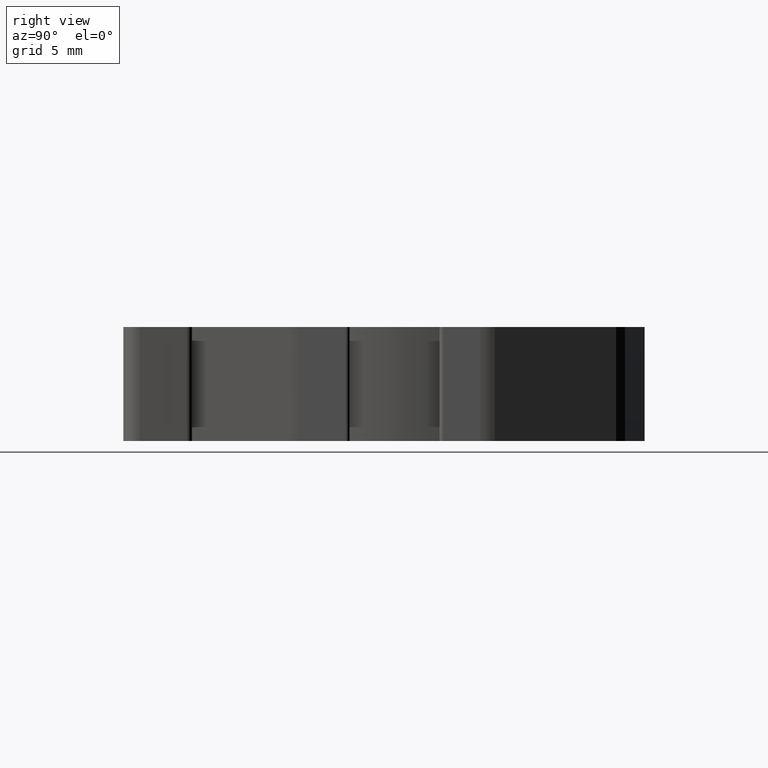
[diagram: clean part render]
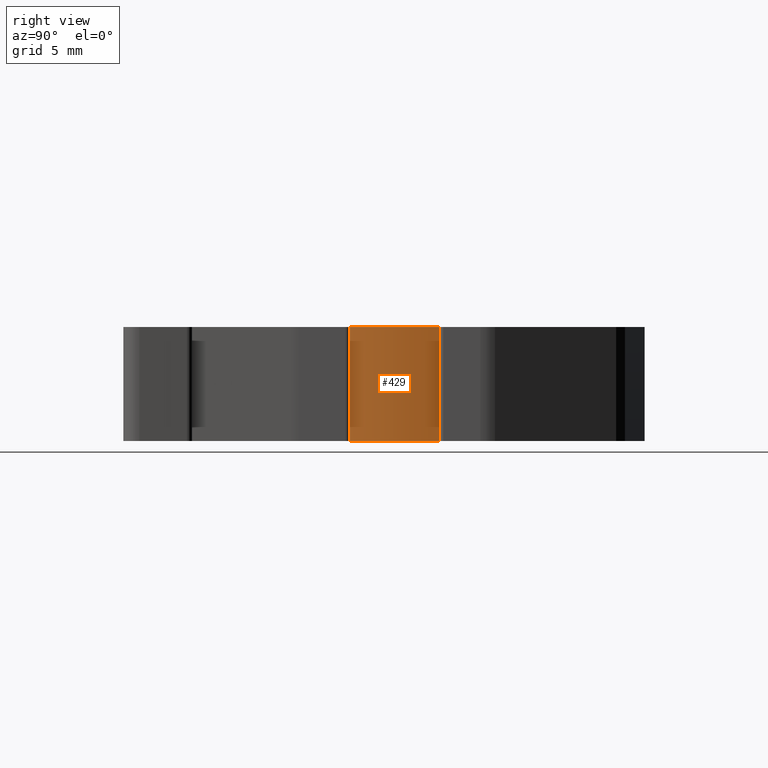
[diagram: same view with one face highlighted and labeled with its STEP entity id]
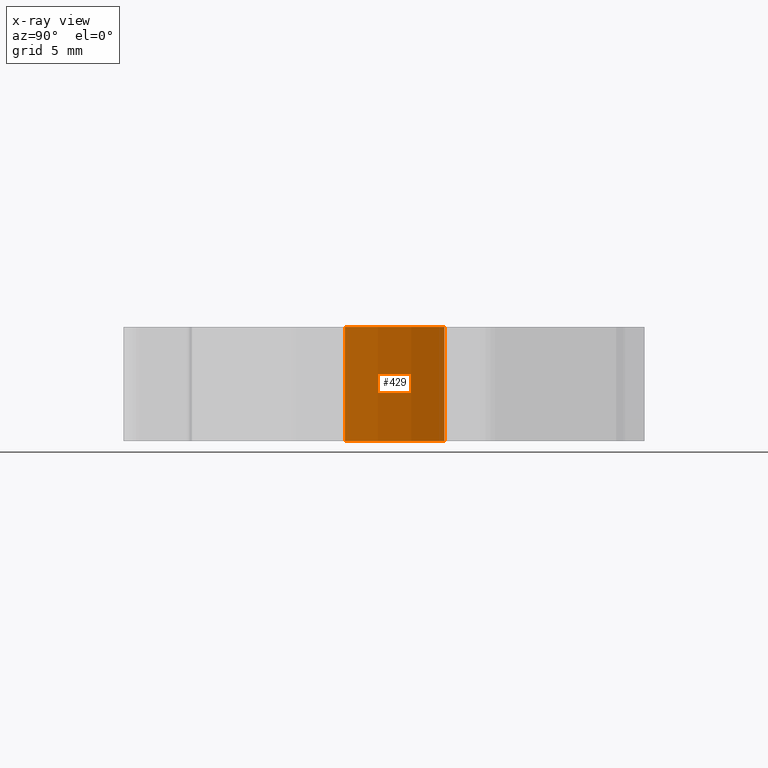
[diagram: x-ray of the same camera — body ghosted, the highlighted face saturated]
A machine part, right view. The second image highlights one B-rep face of the part: STEP entity #429.
The next image is the same camera in x-ray: the body ghosted, the highlighted face saturated — about 0% of this face is hidden behind the body in this view.
In plain terms, the highlighted cylindrical surface (partial cylindrical patch) has radius 10.3022 mm, axis along (0, 0, -1).
Its self-contained STEP definition (entity closure, byte-faithful):
#96 = AXIS2_PLACEMENT_3D ( 'NONE', #2315, #5096, #7691 ) ;
#429 = ADVANCED_FACE ( 'NONE', ( #1088 ), #5669, .T. ) ;
#488 = EDGE_CURVE ( 'NONE', #6468, #5509, #6141, .T. ) ;
#784 = DIRECTION ( 'NONE',  ( 1.000000000000000000, 0.000000000000000000, 0.000000000000000000 ) ) ;
#788 = DIRECTION ( 'NONE',  ( 1.000000000000000000, 0.000000000000000000, 0.000000000000000000 ) ) ;
#804 = AXIS2_PLACEMENT_3D ( 'NONE', #4920, #960, #784 ) ;
#918 = ORIENTED_EDGE ( 'NONE', *, *, #1223, .T. ) ;
#960 = DIRECTION ( 'NONE',  ( 0.000000000000000000, 0.000000000000000000, 1.000000000000000000 ) ) ;
#1088 = FACE_OUTER_BOUND ( 'NONE', #1098, .T. ) ;
#1098 = EDGE_LOOP ( 'NONE', ( #5867, #918, #7059, #4342 ) ) ;
#1223 = EDGE_CURVE ( 'NONE', #3456, #8634, #6262, .T. ) ;
#1317 = CARTESIAN_POINT ( 'NONE',  ( 1193.497066441781953, 595.7285291532880365, 5.799999999999999822 ) ) ;
#1496 = CARTESIAN_POINT ( 'NONE',  ( 1183.510026754041974, 593.1996189174609526, 0.000000000000000000 ) ) ;
#1517 = CARTESIAN_POINT ( 'NONE',  ( 1193.497066441781953, 595.7285291532880365, 0.000000000000000000 ) ) ;
#2315 = CARTESIAN_POINT ( 'NONE',  ( 1183.510026754041974, 593.1996189174609526, 5.799999999999999822 ) ) ;
#3328 = EDGE_CURVE ( 'NONE', #5509, #8634, #3334, .T. ) ;
#3334 = LINE ( 'NONE', #6021, #7153 ) ;
#3399 = EDGE_CURVE ( 'NONE', #6468, #3456, #7975, .T. ) ;
#3456 = VERTEX_POINT ( 'NONE', #6149 ) ;
#4342 = ORIENTED_EDGE ( 'NONE', *, *, #488, .F. ) ;
#4920 = CARTESIAN_POINT ( 'NONE',  ( 1183.510026754041974, 593.1996189174609526, 5.799999999999999822 ) ) ;
#5096 = DIRECTION ( 'NONE',  ( 0.000000000000000000, 0.000000000000000000, -1.000000000000000000 ) ) ;
#5509 = VERTEX_POINT ( 'NONE', #1317 ) ;
#5669 = CYLINDRICAL_SURFACE ( 'NONE', #96, 10.30224969146864566 ) ;
#5738 = VECTOR ( 'NONE', #5942, 1000.000000000000000 ) ;
#5867 = ORIENTED_EDGE ( 'NONE', *, *, #3399, .T. ) ;
#5942 = DIRECTION ( 'NONE',  ( 0.000000000000000000, 0.000000000000000000, -1.000000000000000000 ) ) ;
#6021 = CARTESIAN_POINT ( 'NONE',  ( 1193.497066441781953, 595.7285291532880365, 5.799999999999999822 ) ) ;
#6141 = CIRCLE ( 'NONE', #804, 10.30224969146864566 ) ;
#6149 = CARTESIAN_POINT ( 'NONE',  ( 1193.497064757728140, 590.6707020310610687, 0.000000000000000000 ) ) ;
#6262 = CIRCLE ( 'NONE', #7395, 10.30224969146864566 ) ;
#6468 = VERTEX_POINT ( 'NONE', #7458 ) ;
#6688 = DIRECTION ( 'NONE',  ( 0.000000000000000000, 0.000000000000000000, -1.000000000000000000 ) ) ;
#7059 = ORIENTED_EDGE ( 'NONE', *, *, #3328, .F. ) ;
#7153 = VECTOR ( 'NONE', #6688, 1000.000000000000000 ) ;
#7269 = CARTESIAN_POINT ( 'NONE',  ( 1193.497064757728140, 590.6707020310610687, 5.799999999999999822 ) ) ;
#7395 = AXIS2_PLACEMENT_3D ( 'NONE', #1496, #8237, #788 ) ;
#7458 = CARTESIAN_POINT ( 'NONE',  ( 1193.497064757728140, 590.6707020310610687, 5.799999999999999822 ) ) ;
#7691 = DIRECTION ( 'NONE',  ( -1.000000000000000000, 0.000000000000000000, 0.000000000000000000 ) ) ;
#7975 = LINE ( 'NONE', #7269, #5738 ) ;
#8237 = DIRECTION ( 'NONE',  ( 0.000000000000000000, 0.000000000000000000, 1.000000000000000000 ) ) ;
#8634 = VERTEX_POINT ( 'NONE', #1517 ) ;